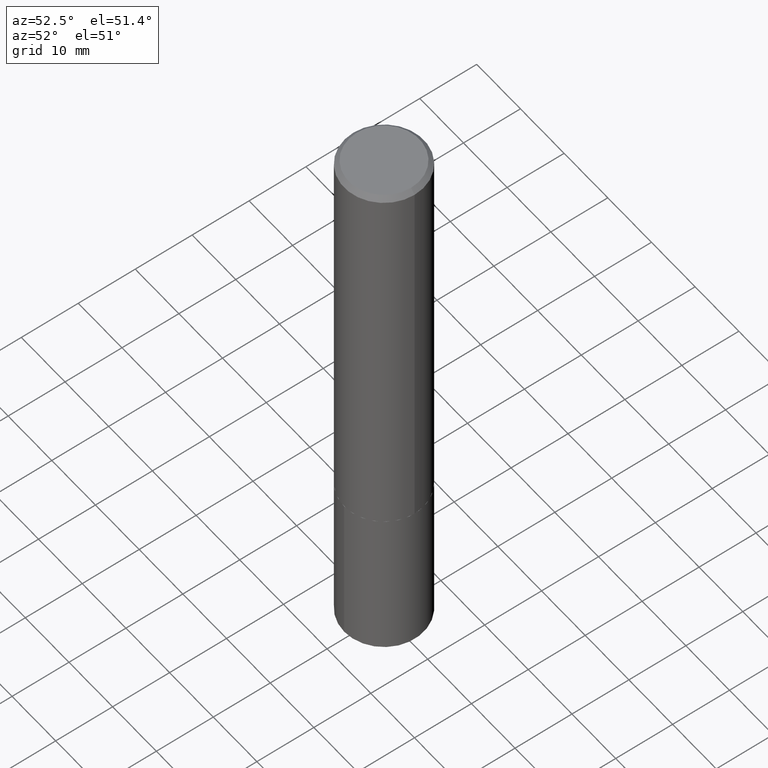
[diagram: clean part render]
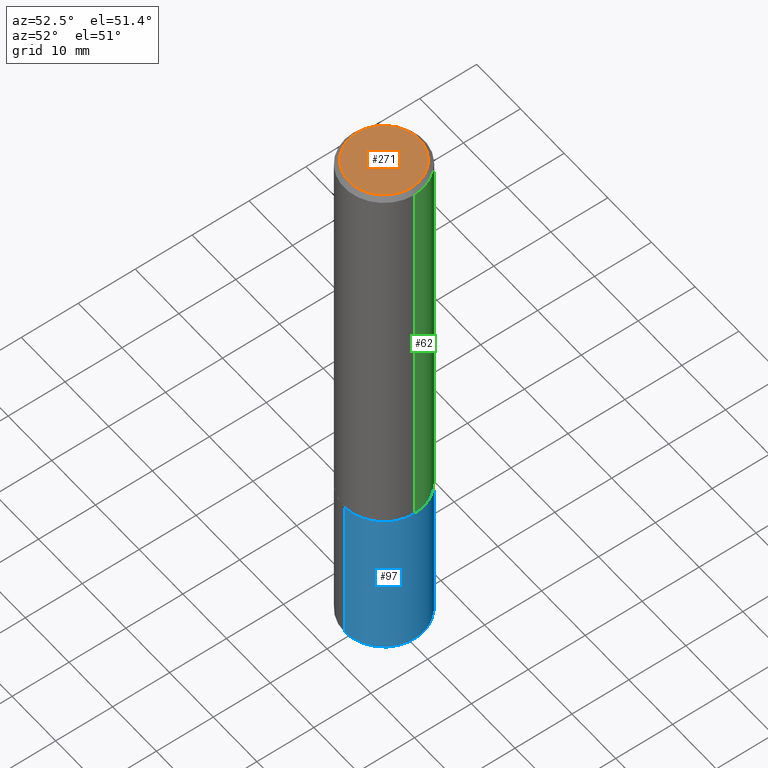
[diagram: same view with three faces highlighted in distinct colors, each labeled with its STEP entity id]
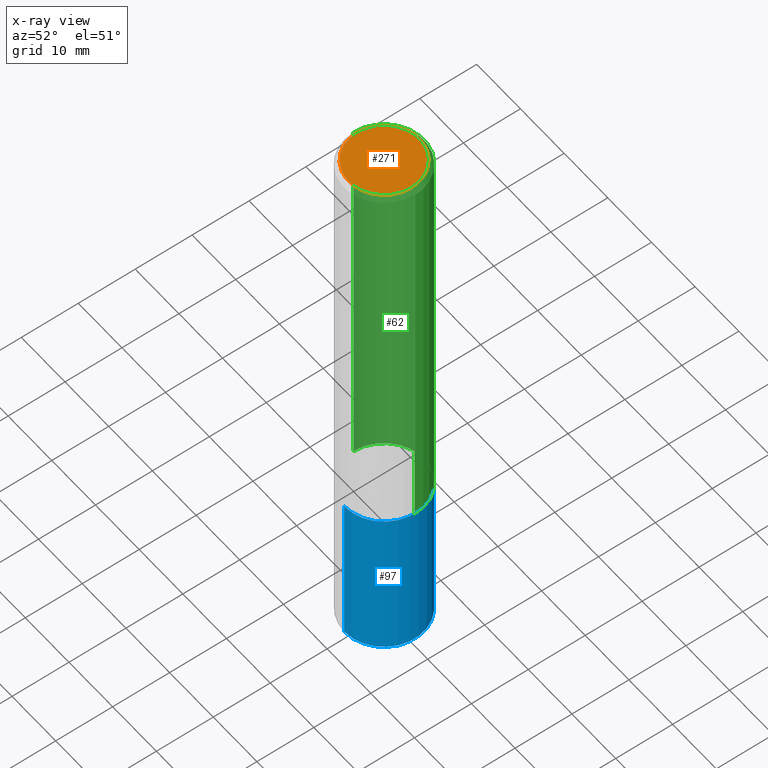
[diagram: x-ray of the same camera — body ghosted, the three highlighted faces saturated]
A machine part, auxiliary view with three faces highlighted in distinct colors.
The next image is the same camera in x-ray (body ghosted, the three faces saturated) — at least one of them is partly hidden behind the body in this view.
Their STEP definitions:

[orange] entity #271 — the highlighted planar face has unit normal (0, -0, -1).
#37 = AXIS2_PLACEMENT_3D ( 'NONE', #229, #341, #92 ) ;
#43 = CARTESIAN_POINT ( 'NONE',  ( 0.2443500000000000116, -1.838112362890078477E-15, 4.825108388652965328E-18 ) ) ;
#46 = PLANE ( 'NONE',  #266 ) ;
#51 = EDGE_CURVE ( 'NONE', #362, #285, #349, .T. ) ;
#65 = DIRECTION ( 'NONE',  ( 1.000000000000000000, -6.982962677686266711E-15, 4.876118653798672988E-29 ) ) ;
#67 = EDGE_CURVE ( 'NONE', #285, #362, #132, .T. ) ;
#71 = DIRECTION ( 'NONE',  ( -1.000000000000000000, 6.982962677686265922E-15, -4.876176775795935793E-29 ) ) ;
#73 = ORIENTED_EDGE ( 'NONE', *, *, #51, .T. ) ;
#92 = DIRECTION ( 'NONE',  ( 1.000000000000000000, -6.982962677686266711E-15, 4.876118653798672988E-29 ) ) ;
#126 = DIRECTION ( 'NONE',  ( 2.438088387897960049E-29, -3.491481338843145188E-15, -1.000000000000000000 ) ) ;
#132 = CIRCLE ( 'NONE', #37, 0.2443500000000000116 ) ;
#147 = AXIS2_PLACEMENT_3D ( 'NONE', #227, #190, #65 ) ;
#184 = FACE_OUTER_BOUND ( 'NONE', #337, .T. ) ;
#190 = DIRECTION ( 'NONE',  ( -2.445468806185136597E-29, 3.491481338843145583E-15, 1.000000000000000000 ) ) ;
#212 = CARTESIAN_POINT ( 'NONE',  ( -5.899826025441373866E-47, 8.423387948417039198E-33, 2.412554194320285792E-18 ) ) ;
#227 = CARTESIAN_POINT ( 'NONE',  ( -1.179965205088274773E-46, 1.684677589683407840E-32, 4.825108388640571583E-18 ) ) ;
#229 = CARTESIAN_POINT ( 'NONE',  ( -1.179965205088274773E-46, 1.684677589683407840E-32, 4.825108388640571583E-18 ) ) ;
#247 = ORIENTED_EDGE ( 'NONE', *, *, #67, .T. ) ;
#266 = AXIS2_PLACEMENT_3D ( 'NONE', #212, #126, #71 ) ;
#271 = ADVANCED_FACE ( 'NONE', ( #184 ), #46, .F. ) ;
#285 = VERTEX_POINT ( 'NONE', #297 ) ;
#297 = CARTESIAN_POINT ( 'NONE',  ( -0.2443500000000000116, 1.760841326212062881E-15, 4.825108388628448239E-18 ) ) ;
#337 = EDGE_LOOP ( 'NONE', ( #247, #73 ) ) ;
#341 = DIRECTION ( 'NONE',  ( -2.445468806185136597E-29, 3.491481338843145583E-15, 1.000000000000000000 ) ) ;
#349 = CIRCLE ( 'NONE', #147, 0.2443500000000000116 ) ;
#362 = VERTEX_POINT ( 'NONE', #43 ) ;

[blue] entity #97 — the highlighted cylindrical surface (partial cylindrical patch) has radius 7.0002 mm, axis along (-0, 0, 1).
#2 = CARTESIAN_POINT ( 'NONE',  ( 1.958255779754932830E-15, 0.2755999999999901307, -2.835000000000000853 ) ) ;
#20 = CARTESIAN_POINT ( 'NONE',  ( -1.924504513970265534E-15, -0.2756000000000099481, -2.834999999999998632 ) ) ;
#30 = VERTEX_POINT ( 'NONE', #2 ) ;
#35 = DIRECTION ( 'NONE',  ( -2.445991184823511877E-29, 3.490733262901046264E-15, 1.000000000000000000 ) ) ;
#40 = CYLINDRICAL_SURFACE ( 'NONE', #292, 0.2756000000000000116 ) ;
#42 = VECTOR ( 'NONE', #265, 39.37007874015748143 ) ;
#45 = VERTEX_POINT ( 'NONE', #138 ) ;
#56 = EDGE_LOOP ( 'NONE', ( #106, #105, #309, #162 ) ) ;
#60 = AXIS2_PLACEMENT_3D ( 'NONE', #64, #35, #117 ) ;
#64 = CARTESIAN_POINT ( 'NONE',  ( 6.932904065534861534E-29, -9.898349595620316510E-15, -2.834999999999999520 ) ) ;
#68 = LINE ( 'NONE', #263, #42 ) ;
#89 = DIRECTION ( 'NONE',  ( -6.982962677686265922E-15, -1.000000000000000000, 3.964946289788480896E-15 ) ) ;
#97 = ADVANCED_FACE ( 'NONE', ( #291 ), #40, .T. ) ;
#98 = DIRECTION ( 'NONE',  ( -2.445991184823512157E-29, 3.490733262901045869E-15, 1.000000000000000000 ) ) ;
#105 = ORIENTED_EDGE ( 'NONE', *, *, #189, .T. ) ;
#106 = ORIENTED_EDGE ( 'NONE', *, *, #206, .T. ) ;
#116 = VERTEX_POINT ( 'NONE', #311 ) ;
#117 = DIRECTION ( 'NONE',  ( -6.982962677686265922E-15, -1.000000000000000000, 3.964946289788480896E-15 ) ) ;
#122 = CARTESIAN_POINT ( 'NONE',  ( 6.932904065534861534E-29, -9.898349595620316510E-15, -2.834999999999999520 ) ) ;
#124 = CARTESIAN_POINT ( 'NONE',  ( 1.958255779754919025E-15, 0.2755999999999862449, -3.937000000000001609 ) ) ;
#138 = CARTESIAN_POINT ( 'NONE',  ( -1.924504513970265534E-15, -0.2756000000000099481, -2.834999999999998632 ) ) ;
#142 = CIRCLE ( 'NONE', #60, 0.2756000000000000116 ) ;
#159 = AXIS2_PLACEMENT_3D ( 'NONE', #262, #178, #173 ) ;
#162 = ORIENTED_EDGE ( 'NONE', *, *, #322, .F. ) ;
#173 = DIRECTION ( 'NONE',  ( -6.982962677686265922E-15, -1.000000000000000000, 3.964946289788480896E-15 ) ) ;
#178 = DIRECTION ( 'NONE',  ( -2.445991184823511877E-29, 3.490733262901046264E-15, 1.000000000000000000 ) ) ;
#189 = EDGE_CURVE ( 'NONE', #281, #30, #68, .T. ) ;
#201 = VECTOR ( 'NONE', #98, 39.37007874015748143 ) ;
#203 = EDGE_CURVE ( 'NONE', #45, #30, #142, .T. ) ;
#206 = EDGE_CURVE ( 'NONE', #116, #281, #310, .T. ) ;
#262 = CARTESIAN_POINT ( 'NONE',  ( 9.628386351210373593E-29, -1.374513765133727185E-14, -3.937000000000000721 ) ) ;
#263 = CARTESIAN_POINT ( 'NONE',  ( 1.958255779754905615E-15, 0.2755999999999901307, -2.835000000000000853 ) ) ;
#265 = DIRECTION ( 'NONE',  ( -2.445991184823512157E-29, 3.490733262901045869E-15, 1.000000000000000000 ) ) ;
#281 = VERTEX_POINT ( 'NONE', #124 ) ;
#291 = FACE_OUTER_BOUND ( 'NONE', #56, .T. ) ;
#292 = AXIS2_PLACEMENT_3D ( 'NONE', #122, #340, #89 ) ;
#309 = ORIENTED_EDGE ( 'NONE', *, *, #203, .F. ) ;
#310 = CIRCLE ( 'NONE', #159, 0.2756000000000000116 ) ;
#311 = CARTESIAN_POINT ( 'NONE',  ( -1.924504513970238713E-15, -0.2756000000000137784, -3.936999999999999389 ) ) ;
#322 = EDGE_CURVE ( 'NONE', #116, #45, #350, .T. ) ;
#340 = DIRECTION ( 'NONE',  ( -2.445991184823511877E-29, 3.490733262901046264E-15, 1.000000000000000000 ) ) ;
#350 = LINE ( 'NONE', #20, #201 ) ;

[green] entity #62 — the highlighted cylindrical surface (partial cylindrical patch) has radius 7.0002 mm, axis along (-0, 0, 1).
#14 = CARTESIAN_POINT ( 'NONE',  ( 7.642090019328606165E-31, -1.091087918388490760E-16, -0.03125000000000022204 ) ) ;
#25 = CARTESIAN_POINT ( 'NONE',  ( 0.2756000000000001782, -1.924504513970336532E-15, 1.343874319409360828E-29 ) ) ;
#27 = EDGE_CURVE ( 'NONE', #325, #135, #144, .T. ) ;
#28 = DIRECTION ( 'NONE',  ( -2.445468806185136877E-29, 3.491481338843145188E-15, 1.000000000000000000 ) ) ;
#54 = VERTEX_POINT ( 'NONE', #345 ) ;
#62 = ADVANCED_FACE ( 'NONE', ( #149 ), #204, .T. ) ;
#77 = DIRECTION ( 'NONE',  ( 1.000000000000000000, -6.982962677686264344E-15, 0.000000000000000000 ) ) ;
#90 = VECTOR ( 'NONE', #321, 39.37007874015748143 ) ;
#101 = DIRECTION ( 'NONE',  ( -2.445468806185136597E-29, 3.491481338843145583E-15, 1.000000000000000000 ) ) ;
#104 = CIRCLE ( 'NONE', #210, 0.2756000000000000116 ) ;
#119 = DIRECTION ( 'NONE',  ( 1.000000000000000000, -6.982962677686267499E-15, 4.876176775795935793E-29 ) ) ;
#120 = DIRECTION ( 'NONE',  ( -2.445468806185136597E-29, 3.491481338843145583E-15, 1.000000000000000000 ) ) ;
#128 = CARTESIAN_POINT ( 'NONE',  ( 0.2756000000000003447, -1.182110836892123233E-14, -2.834499999999999353 ) ) ;
#135 = VERTEX_POINT ( 'NONE', #209 ) ;
#144 = LINE ( 'NONE', #25, #282 ) ;
#149 = FACE_OUTER_BOUND ( 'NONE', #300, .T. ) ;
#151 = CARTESIAN_POINT ( 'NONE',  ( 0.000000000000000000, 0.000000000000000000, 0.000000000000000000 ) ) ;
#155 = DIRECTION ( 'NONE',  ( -2.445468806185136597E-29, 3.491481338843145583E-15, 1.000000000000000000 ) ) ;
#156 = ORIENTED_EDGE ( 'NONE', *, *, #241, .T. ) ;
#163 = AXIS2_PLACEMENT_3D ( 'NONE', #352, #155, #77 ) ;
#183 = VERTEX_POINT ( 'NONE', #288 ) ;
#193 = AXIS2_PLACEMENT_3D ( 'NONE', #151, #120, #119 ) ;
#204 = CYLINDRICAL_SURFACE ( 'NONE', #193, 0.2756000000000001782 ) ;
#209 = CARTESIAN_POINT ( 'NONE',  ( 0.2756000000000000116, -2.033613305809184449E-15, -0.03125000000000022204 ) ) ;
#210 = AXIS2_PLACEMENT_3D ( 'NONE', #14, #101, #293 ) ;
#214 = CARTESIAN_POINT ( 'NONE',  ( -0.2756000000000001782, 1.958255779754837378E-15, -1.355658510874252848E-29 ) ) ;
#235 = LINE ( 'NONE', #214, #90 ) ;
#241 = EDGE_CURVE ( 'NONE', #325, #183, #283, .T. ) ;
#280 = EDGE_CURVE ( 'NONE', #135, #54, #104, .T. ) ;
#282 = VECTOR ( 'NONE', #28, 39.37007874015748143 ) ;
#283 = CIRCLE ( 'NONE', #163, 0.2756000000000003447 ) ;
#288 = CARTESIAN_POINT ( 'NONE',  ( -0.2756000000000003447, -7.938348075196056050E-15, -2.834499999999999353 ) ) ;
#293 = DIRECTION ( 'NONE',  ( 1.000000000000000000, -6.982962677686267499E-15, 0.000000000000000000 ) ) ;
#295 = ORIENTED_EDGE ( 'NONE', *, *, #331, .T. ) ;
#300 = EDGE_LOOP ( 'NONE', ( #156, #295, #335, #330 ) ) ;
#321 = DIRECTION ( 'NONE',  ( -2.445468806185136877E-29, 3.491481338843145188E-15, 1.000000000000000000 ) ) ;
#325 = VERTEX_POINT ( 'NONE', #128 ) ;
#330 = ORIENTED_EDGE ( 'NONE', *, *, #27, .F. ) ;
#331 = EDGE_CURVE ( 'NONE', #183, #54, #235, .T. ) ;
#335 = ORIENTED_EDGE ( 'NONE', *, *, #280, .F. ) ;
#345 = CARTESIAN_POINT ( 'NONE',  ( -0.2756000000000000116, -3.044600543640032703E-15, -0.03125000000000022204 ) ) ;
#352 = CARTESIAN_POINT ( 'NONE',  ( 6.931681331131768733E-29, -9.896603854950894217E-15, -2.834499999999999353 ) ) ;